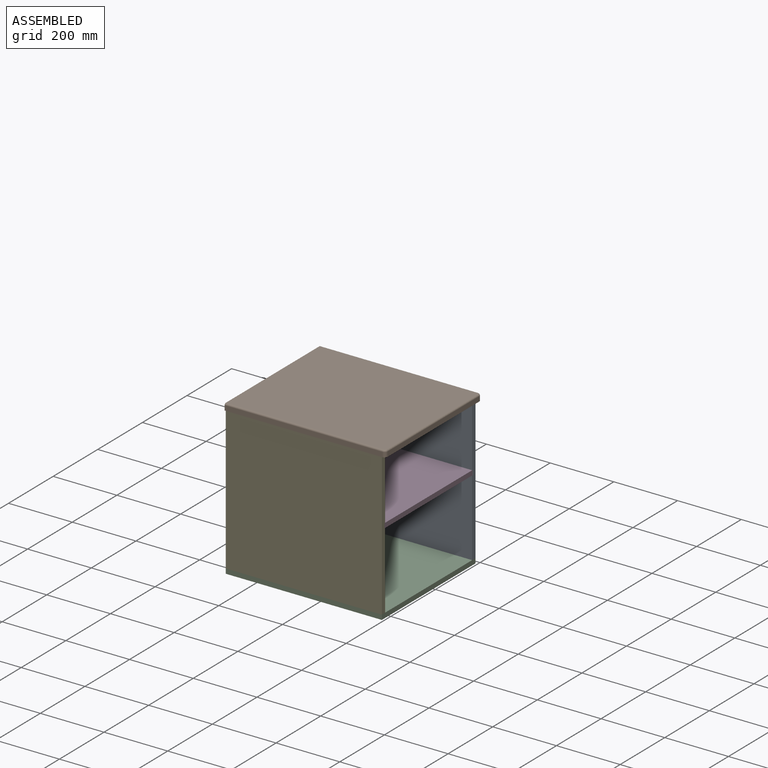
[diagram: assembled view]
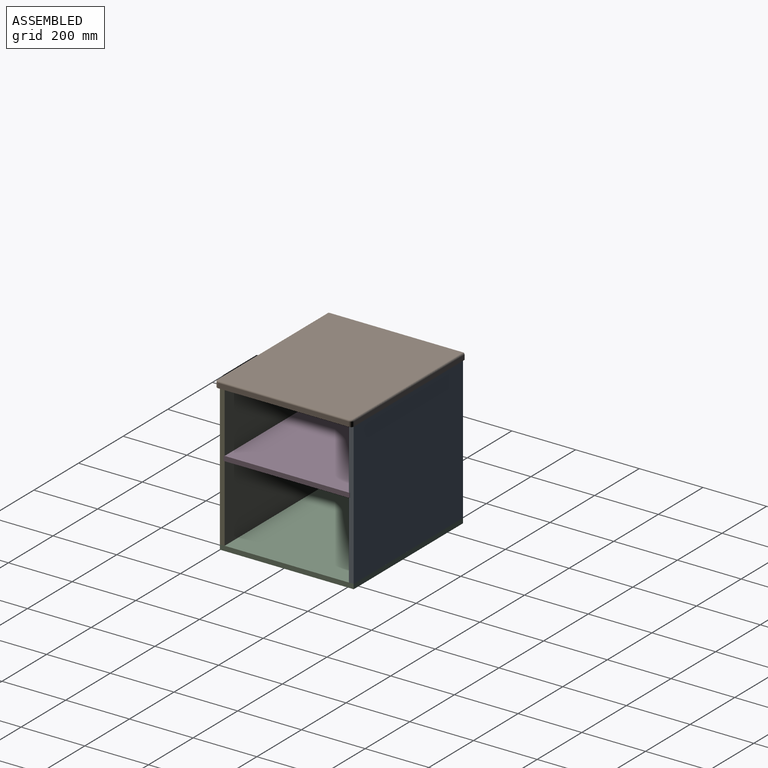
[diagram: assembled view, second angle]
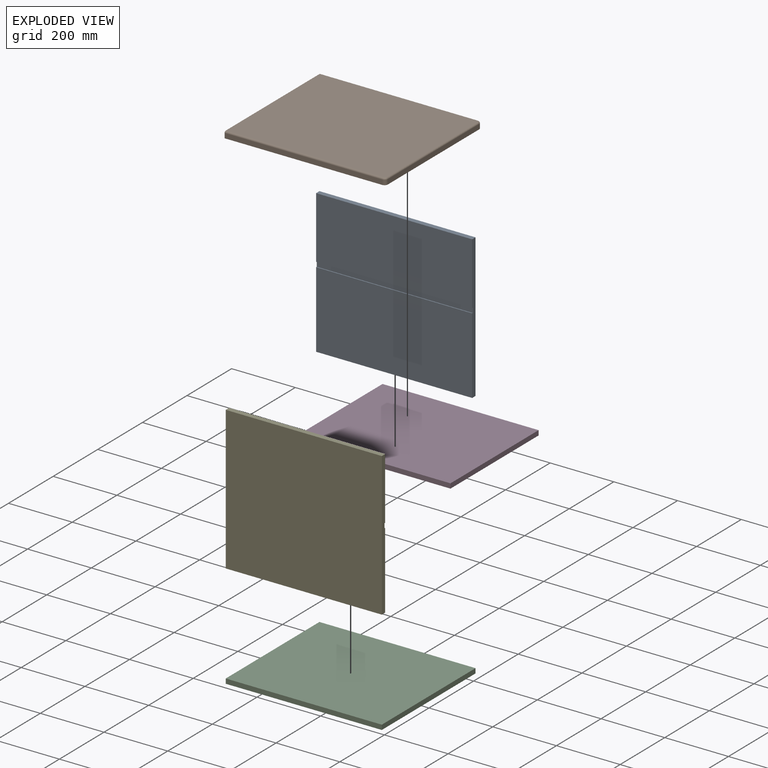
[diagram: exploded view]
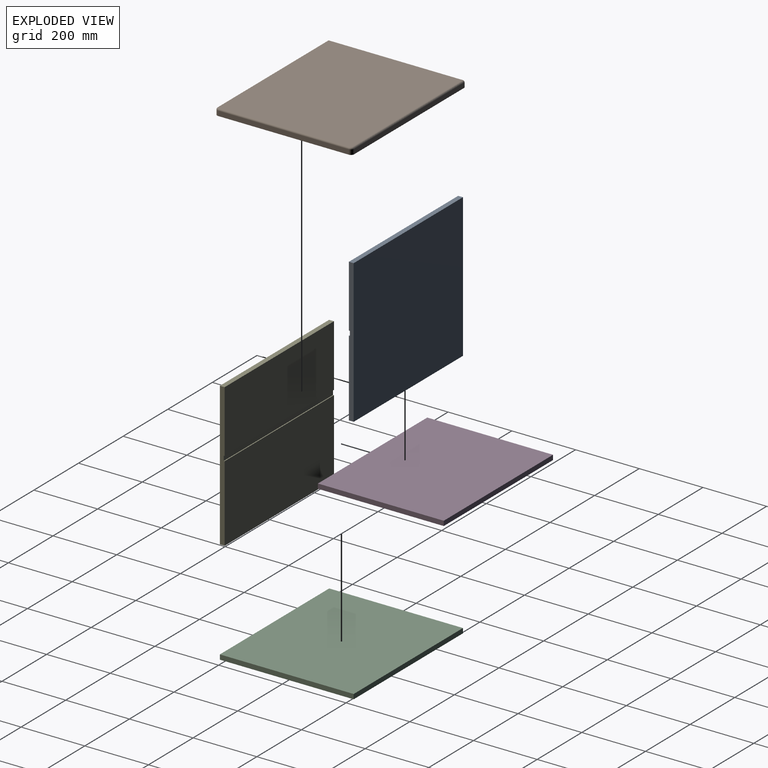
[diagram: exploded view, second angle]
ASSEMBLY  parts=5 mates=4
PART A: 10 faces, bbox 15x490x450 mm
  f0: plane 490x195mm, normal (1,0,0), area 95550mm2, adj f1,f3,f4,f8
  f1: plane 450x15mm, normal (0,-1,0), area 6705mm2, adj f0,f2,f4,f5,f6,f7,f8,f9
  f2: plane 490x15mm, normal (0,0,-1), area 7350mm2, adj f1,f3,f5,f6
  f3: plane 450x15mm, normal (0,1,0), area 6705mm2, adj f0,f2,f4,f5,f6,f7,f8,f9
  f4: plane 490x15mm, normal (0,0,1), area 7350mm2, adj f0,f1,f3,f6
  f5: plane 490x240mm, normal (1,0,0), area 117600mm2, adj f1,f2,f3,f7
  f6: plane 490x450mm, normal (-1,0,0), area 220500mm2, adj f1,f2,f3,f4
  f7: plane 490x3mm, normal (0,0,1), area 1470mm2, adj f1,f3,f5,f9
  f8: plane 490x3mm, normal (0,0,-1), area 1470mm2, adj f0,f1,f3,f9
  f9: plane 490x15mm, normal (1,0,0), area 7350mm2, adj f1,f3,f7,f8
PART B: 13 faces, bbox 505.8x431.6x20 mm
  f0: plane 410x15mm, normal (1,0,0), area 6150mm2, adj f5,f6,f7,f10
  f1: plane 495x15mm, normal (0,1,0), area 7425mm2, adj f2,f5,f6,f12
  f2: plane 430x20mm, normal (-1,0,0), area 8589.3mm2, adj f1,f3,f4,f5,f8,f12
  f3: plane 495x15mm, normal (0,-1,0), area 7425mm2, adj f2,f5,f7,f8
  f4: plane 500x420mm, normal (0,0,1), area 209989.3mm2, adj f2,f8,f9,f10,f11,f12
  f5: plane 505x430mm, normal (0,0,-1), area 217107.1mm2, adj f0,f1,f2,f3,f6,f7
  f6: cylinder r=10mm len=15mm, axis (0,0,-1), area 235.6mm2, adj f0,f1,f5,f11
  f7: cylinder r=10mm len=15mm, axis (0,0,1), area 235.6mm2, adj f0,f3,f5,f9
  f8: cylinder r=5mm len=495mm, axis (-1,0,0), area 3887.7mm2, adj f2,f3,f4,f9
  f9: torus R=5mm, axis (0,0,1), area 101mm2, adj f4,f7,f8,f10
  f10: cylinder r=5mm len=410mm, axis (0,-1,0), area 3220.1mm2, adj f0,f4,f9,f11
  f11: torus R=5mm, axis (0,0,1), area 101mm2, adj f4,f6,f10,f12
  f12: cylinder r=5mm len=495mm, axis (1,0,0), area 3887.7mm2, adj f1,f2,f4,f11
PART C: 6 faces, bbox 490x420x15 mm
  f0: plane 490x15mm, normal (0,-1,0), area 7350mm2, adj f1,f3,f4,f5
  f1: plane 420x15mm, normal (1,0,0), area 6300mm2, adj f0,f2,f4,f5
  f2: plane 490x15mm, normal (0,1,0), area 7350mm2, adj f1,f3,f4,f5
  f3: plane 420x15mm, normal (-1,0,0), area 6300mm2, adj f0,f2,f4,f5
  f4: plane 490x420mm, normal (0,0,1), area 205800mm2, adj f0,f1,f2,f3
  f5: plane 490x420mm, normal (0,0,-1), area 205800mm2, adj f0,f1,f2,f3
PART D: 6 faces, bbox 490x395x15 mm
  f0: plane 395x15mm, normal (-1,0,0), area 5925mm2, adj f1,f3,f4,f5
  f1: plane 490x15mm, normal (0,-1,0), area 7350mm2, adj f0,f2,f4,f5
  f2: plane 395x15mm, normal (1,0,0), area 5925mm2, adj f1,f3,f4,f5
  f3: plane 490x15mm, normal (0,1,0), area 7350mm2, adj f0,f2,f4,f5
  f4: plane 490x395mm, normal (0,0,1), area 193550mm2, adj f0,f1,f2,f3
  f5: plane 490x395mm, normal (0,0,-1), area 193550mm2, adj f0,f1,f2,f3
PART E: same geometry as A
PLACE A rot(axis=(0,0,-1),90deg) t=(502.78,-181,-303.22)mm
PLACE B rot(axis=(-0.07,0,-1),0deg) t=(502.78,-606,146.78)mm
PLACE C rot(axis=(-0.07,0,-1),0deg) t=(1105.76,-601,-318.22)mm
PLACE D rot(axis=(-0.07,0,-1),0deg) t=(494.87,-589,-63.22)mm
PLACE E rot(axis=(0,0,1),90deg) t=(992.78,-601,-303.22)mm
MATE parallel E.f2 <-> C.f4  axis (0,0,-1) through (747.78,-601,-303.22)mm
MATE parallel C.f4 <-> A.f2  axis (0,0,1) through (747.78,-181,-303.22)mm
MATE parallel D.f1 <-> E.f9  axis (0,-1,0) through (747.78,-589,-55.72)mm
MATE parallel B.f5 <-> E.f4  axis (0,0,-1) through (502.78,-606,146.78)mm
